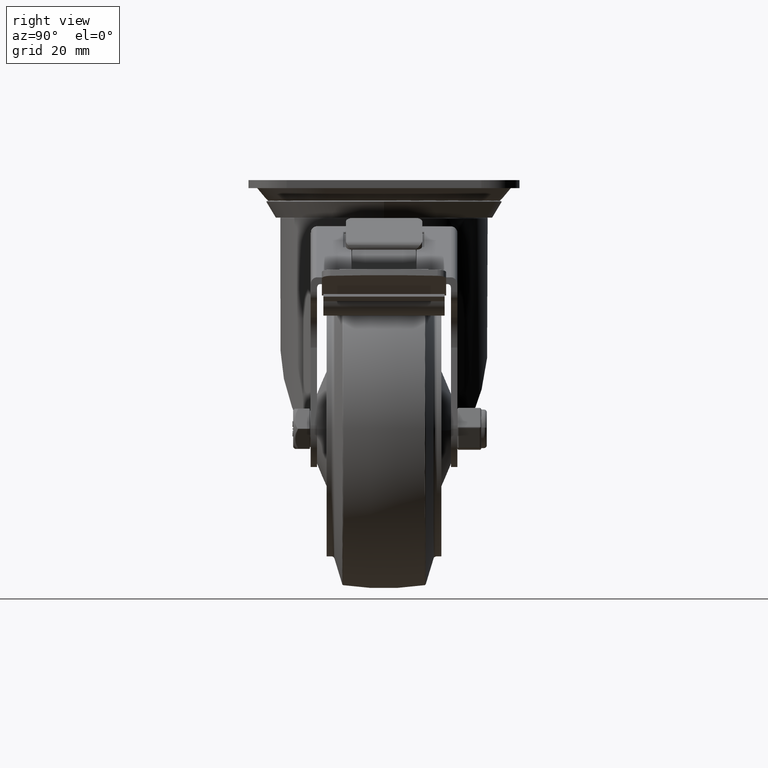
[diagram: clean part render]
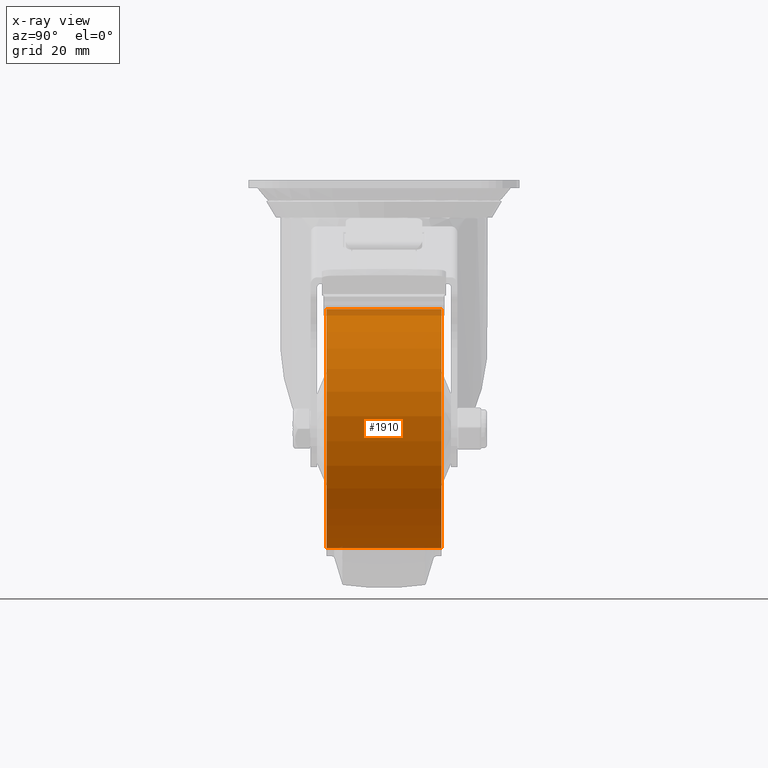
[diagram: x-ray — body ghosted, one internal face saturated and labeled with its STEP entity id]
A machine part, right view, then the same camera in x-ray: the body is ghosted and one INTERNAL B-rep face — a face not visible from any outside direction — is saturated and labeled: STEP entity #1910.
In plain terms, the highlighted cylindrical surface (partial cylindrical patch) has radius 37.5 mm, axis along (-0, -1, 0).
Its self-contained STEP definition (entity closure, byte-faithful):
#1910=ADVANCED_FACE('37:114449',(#3546),#3547,.F.);
#3546=FACE_OUTER_BOUND('',#6452,.T.);
#3547=CYLINDRICAL_SURFACE('',#6453,0.0375);
#6452=EDGE_LOOP('',(#16336,#16337,#16338,#16339));
#6453=AXIS2_PLACEMENT_3D('',#16340,#16341,#16342);
#16336=ORIENTED_EDGE('',*,*,#24060,.F.);
#16337=ORIENTED_EDGE('',*,*,#24061,.F.);
#16338=ORIENTED_EDGE('',*,*,#24062,.F.);
#16339=ORIENTED_EDGE('',*,*,#24063,.T.);
#16340=CARTESIAN_POINT('',(0.0,2.56407987142843E-19,-8.08072787937931E-34));
#16341=DIRECTION('',(-0.0,-1.0,-6.57456377289338E-18));
#16342=DIRECTION('',(0.0,-6.57456377289338E-18,1.0));
#24060=EDGE_CURVE('',#27565,#27566,#27567,.T.);
#24061=EDGE_CURVE('37:114488',#27568,#27565,#27569,.F.);
#24062=EDGE_CURVE('',#27570,#27568,#27571,.T.);
#24063=EDGE_CURVE('37:114485',#27570,#27566,#27572,.T.);
#27565=VERTEX_POINT('',#33624);
#27566=VERTEX_POINT('',#33625);
#27567=LINE('',#33626,#33627);
#27568=VERTEX_POINT('',#33628);
#27569=CIRCLE('',#33629,0.0375);
#27570=VERTEX_POINT('',#33630);
#27571=LINE('',#33631,#33632);
#27572=CIRCLE('',#33633,0.0375);
#33624=CARTESIAN_POINT('',(4.59242549680257E-18,0.0179999999999999,0.0375));
#33625=CARTESIAN_POINT('',(4.59242549680257E-18,-0.0179999999999999,0.0375));
#33626=CARTESIAN_POINT('',(4.59242549680257E-18,9.86184565934151E-21,0.0375));
#33627=VECTOR('',#42613,1.0);
#33628=CARTESIAN_POINT('',(-4.59242549680257E-18,0.018,-0.0375));
#33629=AXIS2_PLACEMENT_3D('',#42614,#42615,#42616);
#33630=CARTESIAN_POINT('',(4.59242549680257E-18,-0.018,-0.0375));
#33631=CARTESIAN_POINT('',(-4.59242549680257E-18,5.02954128626345E-19,-0.0375));
#33632=VECTOR('',#42617,1.0);
#33633=AXIS2_PLACEMENT_3D('',#42618,#42619,#42620);
#42613=DIRECTION('',(-0.0,-1.0,-6.57456377289338E-18));
#42614=CARTESIAN_POINT('',(0.0,0.018,1.1834214791208E-19));
#42615=DIRECTION('',(0.0,1.0,2.77555756156289E-15));
#42616=DIRECTION('',(0.0,-2.77555756156289E-15,1.0));
#42617=DIRECTION('',(0.0,1.0,6.57456377289338E-18));
#42618=CARTESIAN_POINT('',(0.0,-0.018,-1.18342147912082E-19));
#42619=DIRECTION('',(0.0,-1.0,2.77555756156289E-15));
#42620=DIRECTION('',(0.0,2.77555756156289E-15,1.0));